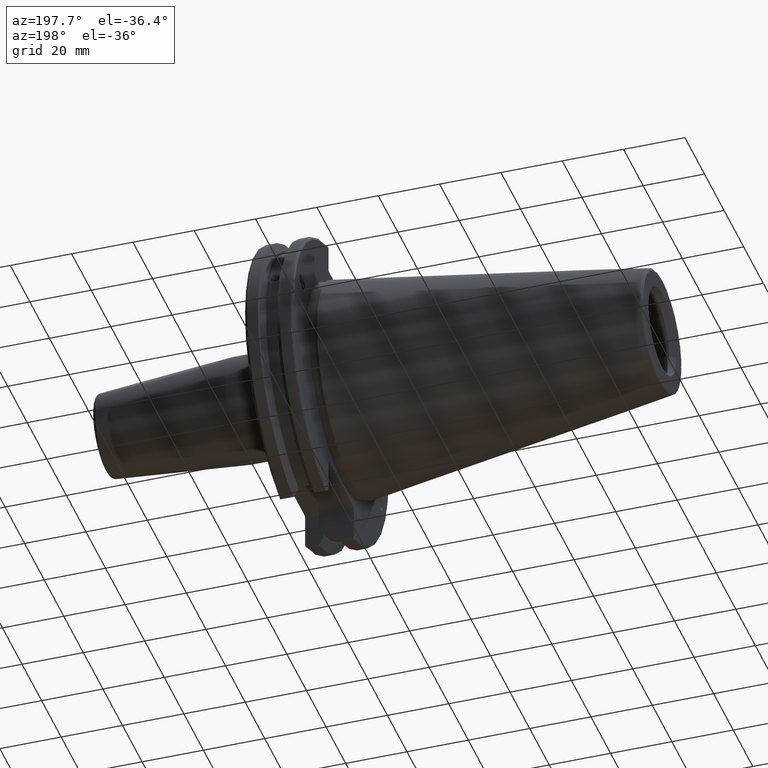
[diagram: clean part render]
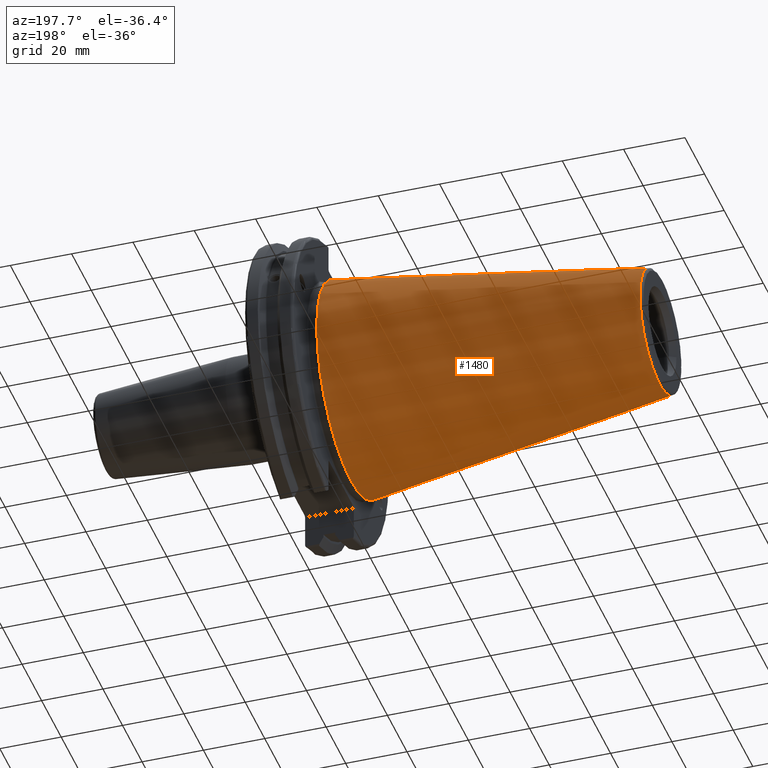
[diagram: same view with one face highlighted and labeled with its STEP entity id]
A machine part, auxiliary view. The second image highlights one B-rep face of the part: STEP entity #1480.
In plain terms, the highlighted conical surface has half-angle 8.297 deg.
Its self-contained STEP definition (entity closure, byte-faithful):
#77=CONICAL_SURFACE('',#1651,27.5166666666666,0.14481249823894);
#153=LINE('',#2954,#243);
#243=VECTOR('',#2006,27.5166666666666);
#401=FACE_OUTER_BOUND('',#503,.T.);
#503=EDGE_LOOP('',(#1284,#1285,#1286,#1287,#1288));
#591=CIRCLE('',#1645,20.233121911427);
#592=CIRCLE('',#1646,20.233121911427);
#596=CIRCLE('',#1652,34.925);
#741=VERTEX_POINT('',#2941);
#742=VERTEX_POINT('',#2942);
#745=VERTEX_POINT('',#2952);
#937=EDGE_CURVE('',#741,#742,#591,.T.);
#938=EDGE_CURVE('',#742,#741,#592,.T.);
#942=EDGE_CURVE('',#745,#745,#596,.T.);
#943=EDGE_CURVE('',#745,#742,#153,.T.);
#1284=ORIENTED_EDGE('',*,*,#942,.F.);
#1285=ORIENTED_EDGE('',*,*,#943,.T.);
#1286=ORIENTED_EDGE('',*,*,#937,.F.);
#1287=ORIENTED_EDGE('',*,*,#938,.F.);
#1288=ORIENTED_EDGE('',*,*,#943,.F.);
#1480=ADVANCED_FACE('',(#401),#77,.T.);
#1645=AXIS2_PLACEMENT_3D('',#2943,#1990,#1991);
#1646=AXIS2_PLACEMENT_3D('',#2944,#1992,#1993);
#1651=AXIS2_PLACEMENT_3D('',#2951,#2002,#2003);
#1652=AXIS2_PLACEMENT_3D('',#2953,#2004,#2005);
#1990=DIRECTION('center_axis',(-1.,0.,0.));
#1991=DIRECTION('ref_axis',(0.,-1.,3.06161699786838E-17));
#1992=DIRECTION('center_axis',(-1.,0.,0.));
#1993=DIRECTION('ref_axis',(0.,-1.,3.06161699786838E-17));
#2002=DIRECTION('center_axis',(1.,0.,0.));
#2003=DIRECTION('ref_axis',(0.,1.,0.));
#2004=DIRECTION('center_axis',(1.,0.,0.));
#2005=DIRECTION('ref_axis',(0.,0.,-1.));
#2006=DIRECTION('',(-0.989532981063281,0.144306893071729,1.76724974695192E-17));
#2941=CARTESIAN_POINT('',(-100.744306893072,-2.47784279855872E-15,20.233121911427));
#2942=CARTESIAN_POINT('',(-100.744306893072,-20.233121911427,-2.47784279855872E-15));
#2943=CARTESIAN_POINT('Origin',(-100.744306893072,0.,-3.09730349819841E-15));
#2944=CARTESIAN_POINT('Origin',(-100.744306893072,0.,-3.09730349819841E-15));
#2951=CARTESIAN_POINT('Origin',(-50.8,0.,0.));
#2952=CARTESIAN_POINT('',(-8.88178419700125E-15,-34.925,-4.27707894602213E-15));
#2953=CARTESIAN_POINT('Origin',(0.,0.,0.));
#2954=CARTESIAN_POINT('',(-50.8,-27.5166666666666,-3.3698197756538E-15));